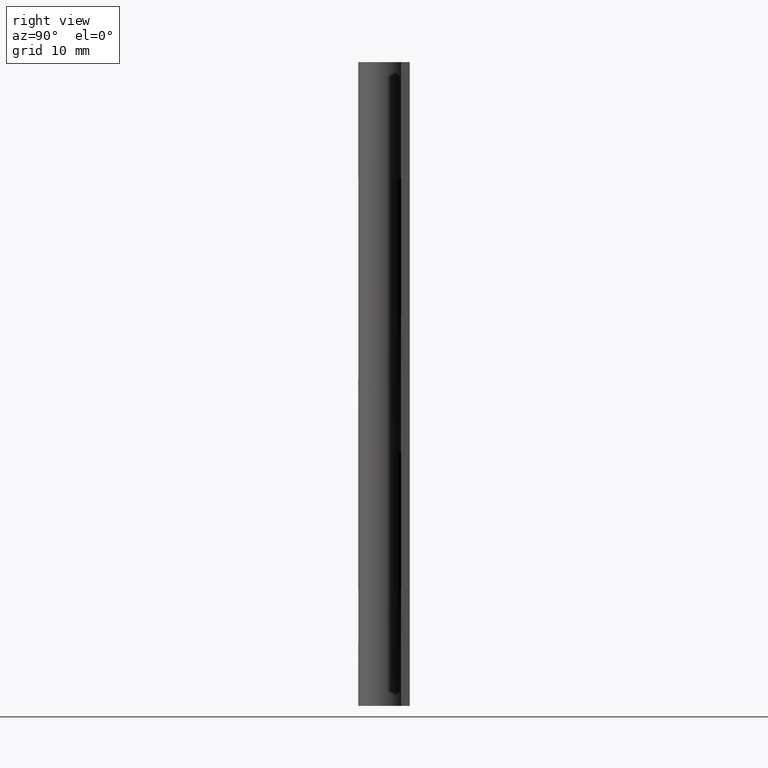
[diagram: clean part render]
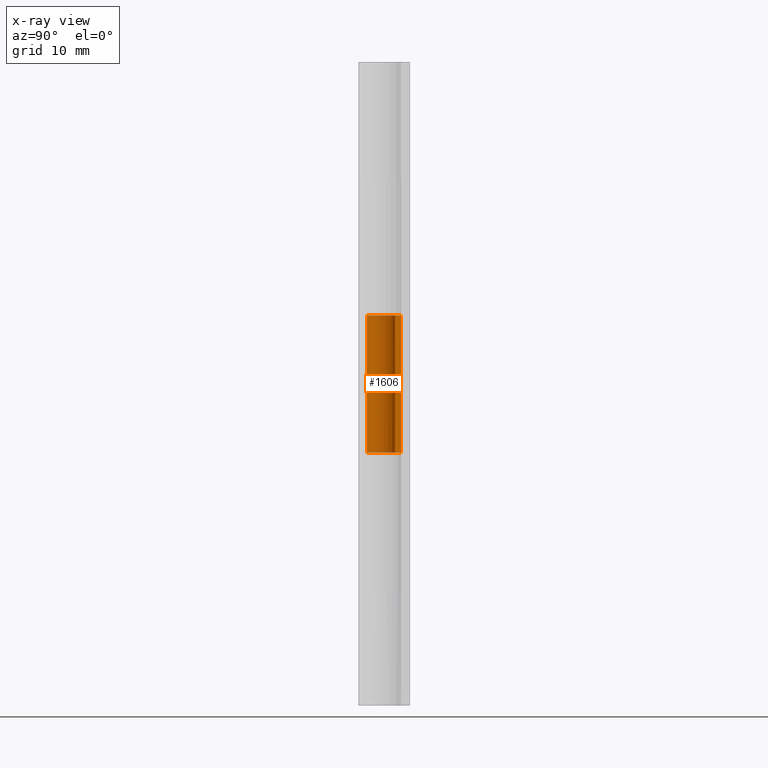
[diagram: x-ray — body ghosted, one internal face saturated and labeled with its STEP entity id]
A machine part, right view, then the same camera in x-ray: the body is ghosted and one INTERNAL B-rep face — a face not visible from any outside direction — is saturated and labeled: STEP entity #1606.
In plain terms, the highlighted face is a freeform B-spline surface patch.
Its self-contained STEP definition (entity closure, byte-faithful):
#885=CARTESIAN_POINT('',(0.0,2.0,29.500000000000000));
#886=VERTEX_POINT('',#885);
#892=CARTESIAN_POINT('',(1.519868415357065,1.300000000000000,29.500000000000000));
#893=VERTEX_POINT('',#892);
#894=CARTESIAN_POINT('',(1.519868415357066,1.300000000000001,29.500000000000000));
#895=CARTESIAN_POINT('',(2.565756638206525,0.077221172382445,29.500000000000007));
#896=CARTESIAN_POINT('',(1.595298424664661,-1.206243315530681,29.500000000000000));
#897=CARTESIAN_POINT('',(0.624840211122799,-2.489707803443805,29.500000000000007));
#898=CARTESIAN_POINT('',(-0.836660026534074,-1.816590212458496,29.500000000000000));
#899=CARTESIAN_POINT('',(-2.298160264190946,-1.143472621473187,29.500000000000007));
#900=CARTESIAN_POINT('',(-1.953609534287365,0.428263689263405,29.500000000000000));
#901=CARTESIAN_POINT('',(-1.609058804383784,2.0,29.500000000000007));
#902=CARTESIAN_POINT('',(0.0,2.0,29.500000000000000));
#910=(BOUNDED_CURVE()B_SPLINE_CURVE(2,(#894,#895,#896,#897,#898,#899,#900,#901,#902),.UNSPECIFIED.,.F.,.U.)B_SPLINE_CURVE_WITH_KNOTS((3,2,2,2,3),(0.0,0.250000000000000,0.500000000000000,0.750000000000000,1.0),.UNSPECIFIED.)CURVE()GEOMETRIC_REPRESENTATION_ITEM()RATIONAL_B_SPLINE_CURVE((1.0,0.779144352681743,1.0,0.779144352681743,1.0,0.779144352681743,1.0,0.779144352681743,1.0))REPRESENTATION_ITEM(''));
#911=EDGE_CURVE('',#893,#886,#910,.T.);
#1061=CARTESIAN_POINT('',(1.519868415357065,1.300000000000000,45.500000000000000));
#1062=VERTEX_POINT('',#1061);
#1068=CARTESIAN_POINT('',(0.0,2.0,45.500000000000000));
#1069=VERTEX_POINT('',#1068);
#1070=CARTESIAN_POINT('',(0.0,2.0,45.500000000000000));
#1071=CARTESIAN_POINT('',(-1.609058804383781,2.0,45.500000000000007));
#1072=CARTESIAN_POINT('',(-1.953609534287365,0.428263689263410,45.500000000000000));
#1073=CARTESIAN_POINT('',(-2.298160264190950,-1.143472621473183,45.500000000000007));
#1074=CARTESIAN_POINT('',(-0.836660026534076,-1.816590212458495,45.500000000000000));
#1075=CARTESIAN_POINT('',(0.624840211122797,-2.489707803443807,45.500000000000007));
#1076=CARTESIAN_POINT('',(1.595298424664661,-1.206243315530682,45.500000000000000));
#1077=CARTESIAN_POINT('',(2.565756638206524,0.077221172382442,45.500000000000007));
#1078=CARTESIAN_POINT('',(1.519868415357067,1.299999999999999,45.500000000000000));
#1086=(BOUNDED_CURVE()B_SPLINE_CURVE(2,(#1070,#1071,#1072,#1073,#1074,#1075,#1076,#1077,#1078),.UNSPECIFIED.,.F.,.U.)B_SPLINE_CURVE_WITH_KNOTS((3,2,2,2,3),(0.0,0.250000000000000,0.500000000000000,0.750000000000000,1.0),.UNSPECIFIED.)CURVE()GEOMETRIC_REPRESENTATION_ITEM()RATIONAL_B_SPLINE_CURVE((1.0,0.779144352681743,1.0,0.779144352681743,1.0,0.779144352681743,1.0,0.779144352681743,1.0))REPRESENTATION_ITEM(''));
#1087=EDGE_CURVE('',#1069,#1062,#1086,.T.);
#1379=CARTESIAN_POINT('',(0.0,2.0,45.500000000000000));
#1380=CARTESIAN_POINT('',(0.0,2.0,29.500000000000000));
#1381=QUASI_UNIFORM_CURVE('',1,(#1379,#1380),.UNSPECIFIED.,.F.,.U.);
#1382=EDGE_CURVE('',#1069,#886,#1381,.T.);
#1532=CARTESIAN_POINT('',(1.519868415357065,1.300000000000000,45.500000000000000));
#1533=CARTESIAN_POINT('',(1.519868415357065,1.300000000000000,29.500000000000000));
#1534=QUASI_UNIFORM_CURVE('',1,(#1532,#1533),.UNSPECIFIED.,.F.,.U.);
#1535=EDGE_CURVE('',#1062,#893,#1534,.T.);
#1574=CARTESIAN_POINT('',(0.068347680426403,1.998831807476639,45.900000000000013));
#1575=CARTESIAN_POINT('',(0.068347680426403,1.998831807476639,29.090000000000000));
#1576=CARTESIAN_POINT('',(-1.586699368470775,2.055424176262029,45.900000000000006));
#1577=CARTESIAN_POINT('',(-1.586699368470775,2.055424176262029,29.089999999999989));
#1578=CARTESIAN_POINT('',(-1.951004619036856,0.439978381851712,45.900000000000013));
#1579=CARTESIAN_POINT('',(-1.951004619036856,0.439978381851712,29.090000000000000));
#1580=CARTESIAN_POINT('',(-2.315309869602937,-1.175467412558605,45.900000000000006));
#1581=CARTESIAN_POINT('',(-2.315309869602937,-1.175467412558605,29.089999999999989));
#1582=CARTESIAN_POINT('',(-0.796166192055279,-1.834698720397492,45.900000000000013));
#1583=CARTESIAN_POINT('',(-0.796166192055279,-1.834698720397492,29.090000000000000));
#1584=CARTESIAN_POINT('',(0.722977485492381,-2.493930028236380,45.900000000000006));
#1585=CARTESIAN_POINT('',(0.722977485492381,-2.493930028236380,29.089999999999989));
#1586=CARTESIAN_POINT('',(1.653996356085144,-1.124409202228914,45.900000000000013));
#1587=CARTESIAN_POINT('',(1.653996356085144,-1.124409202228914,29.090000000000000));
#1588=CARTESIAN_POINT('',(2.585015226677908,0.245111623778551,45.900000000000006));
#1589=CARTESIAN_POINT('',(2.585015226677908,0.245111623778551,29.089999999999989));
#1590=CARTESIAN_POINT('',(1.413186343816761,1.415240035347295,45.900000000000013));
#1591=CARTESIAN_POINT('',(1.413186343816761,1.415240035347295,29.090000000000000));
#1599=(BOUNDED_SURFACE()B_SPLINE_SURFACE(1,2,((#1574,#1576,#1578,#1580,#1582,#1584,#1586,#1588,#1590),(#1575,#1577,#1579,#1581,#1583,#1585,#1587,#1589,#1591)),.UNSPECIFIED.,.F.,.F.,.U.)B_SPLINE_SURFACE_WITH_KNOTS((2,2),(3,2,2,2,3),(0.0,16.810000000000009),(0.0,2.882148931426654,5.764297862853307,8.646446794279960,11.528595725706611),.UNSPECIFIED.)GEOMETRIC_REPRESENTATION_ITEM()RATIONAL_B_SPLINE_SURFACE(((1.0,0.770235040753384,1.0,0.770235040753384,1.0,0.770235040753384,1.0,0.770235040753384,1.0),(1.0,0.770235040753384,1.0,0.770235040753384,1.0,0.770235040753384,1.0,0.770235040753384,1.0)))REPRESENTATION_ITEM('')SURFACE());
#1600=ORIENTED_EDGE('',*,*,#1535,.T.);
#1601=ORIENTED_EDGE('',*,*,#911,.T.);
#1602=ORIENTED_EDGE('',*,*,#1382,.F.);
#1603=ORIENTED_EDGE('',*,*,#1087,.T.);
#1604=EDGE_LOOP('',(#1600,#1601,#1602,#1603));
#1605=FACE_OUTER_BOUND('',#1604,.T.);
#1606=ADVANCED_FACE('',(#1605),#1599,.F.);